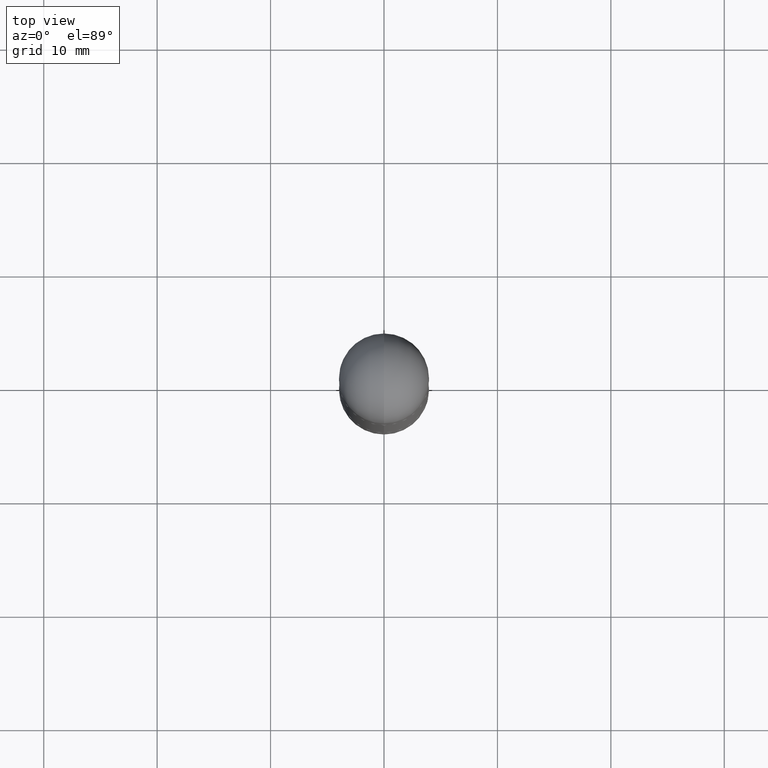
[diagram: clean part render]
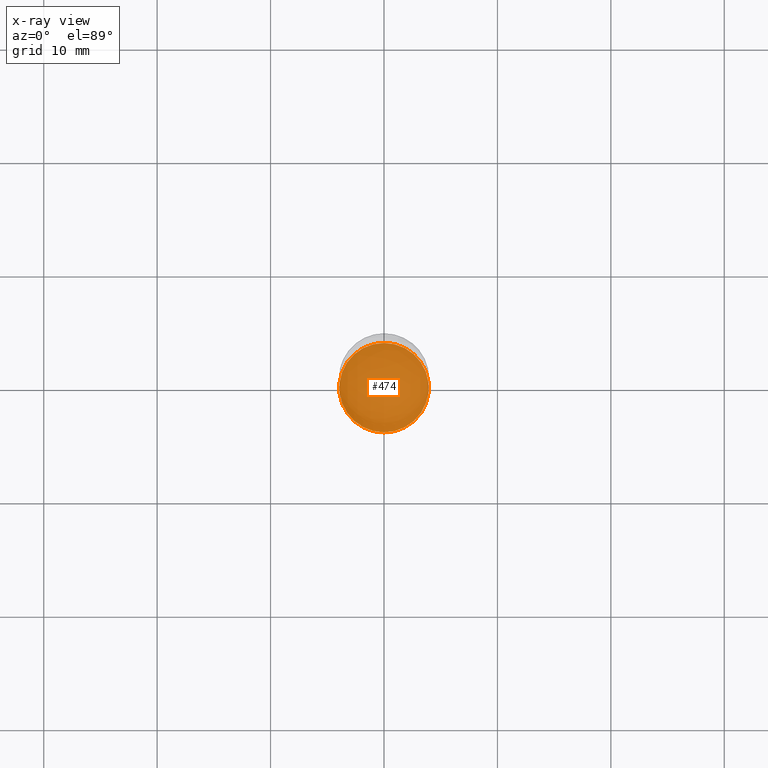
[diagram: x-ray — body ghosted, one internal face saturated and labeled with its STEP entity id]
A machine part, top view, then the same camera in x-ray: the body is ghosted and one INTERNAL B-rep face — a face not visible from any outside direction — is saturated and labeled: STEP entity #474.
In plain terms, the highlighted planar face has unit normal (-0, 0, 1).
Its self-contained STEP definition (entity closure, byte-faithful):
#21 = EDGE_CURVE ( 'NONE', #302, #121, #276, .T. ) ;
#22 = DIRECTION ( 'NONE',  ( -6.982962677686265922E-15, -1.000000000000000000, 3.519288880726909138E-15 ) ) ;
#42 = AXIS2_PLACEMENT_3D ( 'NONE', #149, #547, #652 ) ;
#50 = ORIENTED_EDGE ( 'NONE', *, *, #119, .F. ) ;
#100 = CARTESIAN_POINT ( 'NONE',  ( -1.084104955710744053E-15, -0.1552500000000069935, -1.999999999999999778 ) ) ;
#119 = EDGE_CURVE ( 'NONE', #121, #302, #746, .T. ) ;
#121 = VERTEX_POINT ( 'NONE', #100 ) ;
#149 = CARTESIAN_POINT ( 'NONE',  ( 4.889542538725501566E-29, -6.984960502548266569E-15, -2.000000000000000444 ) ) ;
#210 = DIRECTION ( 'NONE',  ( -2.444771269362750222E-29, 3.492480251274133284E-15, 1.000000000000000000 ) ) ;
#276 = CIRCLE ( 'NONE', #791, 0.1552499999999999991 ) ;
#302 = VERTEX_POINT ( 'NONE', #543 ) ;
#310 = ORIENTED_EDGE ( 'NONE', *, *, #21, .F. ) ;
#328 = PLANE ( 'NONE',  #739 ) ;
#380 = EDGE_LOOP ( 'NONE', ( #50, #310 ) ) ;
#396 = DIRECTION ( 'NONE',  ( -2.444771269362749942E-29, 3.492480251274133284E-15, 1.000000000000000000 ) ) ;
#444 = DIRECTION ( 'NONE',  ( -6.982962677686265922E-15, -1.000000000000000000, 3.492480251274133284E-15 ) ) ;
#474 = ADVANCED_FACE ( 'NONE', ( #573 ), #328, .F. ) ;
#543 = CARTESIAN_POINT ( 'NONE',  ( 1.106670310946405340E-15, 0.1552499999999930047, -2.000000000000000888 ) ) ;
#547 = DIRECTION ( 'NONE',  ( -2.444771269362750222E-29, 3.492480251274133284E-15, 1.000000000000000000 ) ) ;
#573 = FACE_OUTER_BOUND ( 'NONE', #380, .T. ) ;
#624 = CARTESIAN_POINT ( 'NONE',  ( 4.889542538725501005E-29, -6.984960502548265780E-15, -2.000000000000000000 ) ) ;
#652 = DIRECTION ( 'NONE',  ( -6.982962677686265922E-15, -1.000000000000000000, 3.519288880726909138E-15 ) ) ;
#716 = CARTESIAN_POINT ( 'NONE',  ( 4.889542538725501566E-29, -6.984960502548266569E-15, -2.000000000000000444 ) ) ;
#739 = AXIS2_PLACEMENT_3D ( 'NONE', #624, #396, #444 ) ;
#746 = CIRCLE ( 'NONE', #42, 0.1552499999999999991 ) ;
#791 = AXIS2_PLACEMENT_3D ( 'NONE', #716, #210, #22 ) ;